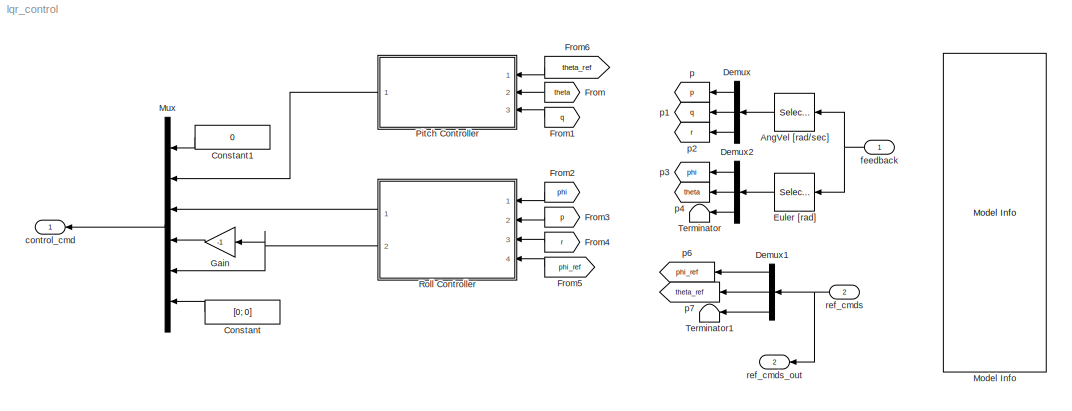
MODEL lqr_control
KIND model
BLOCK [Selector] AngVel [rad//sec]
  IndexOptions = Index vector (dialog)
  Indices = [4:6]
  InputPortWidth = 19
  OutputSizes = 1
  Ports = [1, 1]
  SID = 56
BLOCK [Constant] Constant
  SID = 85
  Value = [0; 0]
BLOCK [Constant] Constant1
  SID = 86
  Value = 0
BLOCK [Demux] Demux
  DisplayOption = bar
  Outputs = 3
  Ports = [1, 3]
  SID = 63
BLOCK [Demux] Demux1
  DisplayOption = bar
  Outputs = [1 1 10]
  Ports = [1, 3]
  SID = 91
BLOCK [Demux] Demux2
  DisplayOption = bar
  Outputs = 3
  Ports = [1, 3]
  SID = 64
BLOCK [Selector] Euler [rad]
  IndexOptions = Index vector (dialog)
  Indices = [1:3]
  InputPortWidth = 19
  OutputSizes = 1
  Ports = [1, 1]
  SID = 62
BLOCK [From] From
  GotoTag = theta
  SID = 71
BLOCK [From] From1
  GotoTag = q
  SID = 72
BLOCK [From] From2
  GotoTag = phi
  SID = 73
BLOCK [From] From3
  GotoTag = p
  SID = 74
BLOCK [From] From4
  GotoTag = r
  SID = 75
BLOCK [From] From5
  GotoTag = phi_ref
  SID = 76
BLOCK [From] From6
  GotoTag = theta_ref
  SID = 77
BLOCK [Gain] Gain
  Gain = -1
  OutDataTypeStr = Inherit: Inherit via internal rule
  ParamDataTypeStr = Inherit: Inherit via internal rule
  SID = 87
  SaturateOnIntegerOverflow = off
BLOCK [Reference] Model Info  REF=simulink/Model-Wide\nUtilities/Model Info
  BlockCM = None
  DisplayStringWithTags = Ref Cmd Port Info\n\n1. phi_cmd\n2. theta_cmd\n3. psi_cmd\n4. p_cmd\n5. q_cmd\n6. r_cmd\n7. V_s_cmd\n8. h_cmd\n9. gndtrk_cmd\n10. aoa_cmd\n11. aos_cmd\n12. gamma_cmd\n13. signal_0\n14. signal_1\n15. signal_2\n16. signal_3\n17. signal_4\n18. signal_5\n19. signal_6\n20. signal_7\n21. signal_8\n22. signal_9
  Frame = on
  HorizontalTextAlignment = Center
  InitialBlockCM = None
  LeftAlignmentValue = 0.5
  MaskDisplayString = Ref Cmd Port Info\\n\\n1. phi_cmd\\n2. theta_cmd\\n3. psi_cmd\\n4. p_cmd\\n5. q_cmd\\n6. r_cmd\\n7. V_s_cmd\\n8. h_cmd\\n9. gndtrk_cmd\\n10. aoa_cmd\\n11. aos_cmd\\n12. gamma_cmd\\n13. signal_0\\n14. signal_1\\n15. signal_2\\n16. signal_3\\n17. signal_4\\n18. signal_5\\n19. signal_6\\n20. signal_7\\n21. signal_8\\n22. signal_9
  Ports = []
  SID = 97
  SourceBlock = simulink/Model-Wide\nUtilities/Model Info
  SourceBlockDiagram = lqr_control
  SourceType = CMBlock
  TagMaxNumber = 20
BLOCK [Mux] Mux
  DisplayOption = bar
  Inputs = 6
  Ports = [6, 1]
  SID = 88
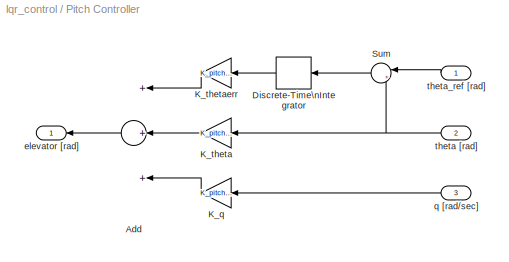
BLOCK [SubSystem] Pitch Controller
  FunctionWithSeparateData = off
  MaskHideContents = off
  MinAlgLoopOccurrences = off
  Opaque = off
  Ports = [3, 1]
  PropExecContextOutsideSubsystem = off
  RTWSystemCode = Auto
  RequestExecContextInheritance = off
  SID = 17
BLOCK [Sum] Pitch Controller/Add
  InputSameDT = off
  Inputs = +++
  OutDataTypeStr = Inherit: Inherit via internal rule
  Ports = [3, 1]
  SID = 28
  SaturateOnIntegerOverflow = off
BLOCK [DiscreteIntegrator] Pitch Controller/Discrete-Time\nIntegrator
  ICPrevOutput = DiscIntNeverNeededParam
  ICPrevScaledInput = DiscIntNeverNeededParam
  Ports = [1, 1]
  SID = 82
  SampleTime = SampleTime
BLOCK [Gain] Pitch Controller/K_q
  Gain = K_pitch(2)
  OutDataTypeStr = Inherit: Inherit via internal rule
  ParamDataTypeStr = Inherit: Inherit via internal rule
  SID = 27
  SaturateOnIntegerOverflow = off
BLOCK [Gain] Pitch Controller/K_theta
  Gain = K_pitch(3)
  OutDataTypeStr = Inherit: Inherit via internal rule
  ParamDataTypeStr = Inherit: Inherit via internal rule
  SID = 26
  SaturateOnIntegerOverflow = off
BLOCK [Gain] Pitch Controller/K_thetaerr
  Gain = K_pitch(1)
  OutDataTypeStr = Inherit: Inherit via internal rule
  ParamDataTypeStr = Inherit: Inherit via internal rule
  SID = 25
  SaturateOnIntegerOverflow = off
BLOCK [Sum] Pitch Controller/Sum
  IconShape = round
  InputSameDT = off
  Inputs = |+-
  OutDataTypeStr = Inherit: Inherit via internal rule
  Ports = [2, 1]
  SID = 24
  SaturateOnIntegerOverflow = off
BLOCK [Outport] Pitch Controller/elevator [rad]
  IconDisplay = Port number
  SID = 19
BLOCK [Inport] Pitch Controller/q [rad//sec]
  IconDisplay = Port number
  Port = 3
  SID = 20
BLOCK [Inport] Pitch Controller/theta [rad]
  IconDisplay = Port number
  Port = 2
  SID = 18
BLOCK [Inport] Pitch Controller/theta_ref [rad]
  IconDisplay = Port number
  SID = 22
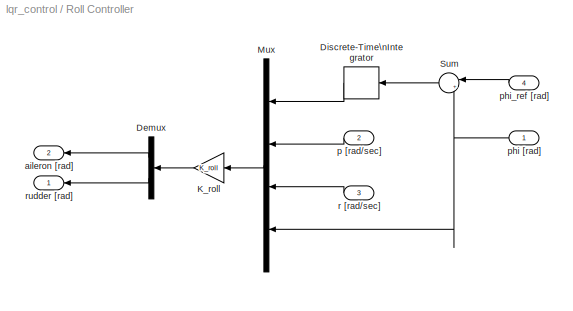
BLOCK [SubSystem] Roll Controller
  FunctionWithSeparateData = off
  MaskHideContents = off
  MinAlgLoopOccurrences = off
  Opaque = off
  Ports = [4, 2]
  PropExecContextOutsideSubsystem = off
  RTWSystemCode = Auto
  RequestExecContextInheritance = off
  SID = 29
BLOCK [Demux] Roll Controller/Demux
  DisplayOption = bar
  Outputs = 2
  Ports = [1, 2]
  SID = 44
BLOCK [DiscreteIntegrator] Roll Controller/Discrete-Time\nIntegrator
  ICPrevOutput = DiscIntNeverNeededParam
  ICPrevScaledInput = DiscIntNeverNeededParam
  Ports = [1, 1]
  SID = 83
  SampleTime = SampleTime
BLOCK [Gain] Roll Controller/K_roll
  Gain = K_roll
  Multiplication = Matrix(K*u) (u vector)
  OutDataTypeStr = Inherit: Inherit via internal rule
  ParamDataTypeStr = Inherit: Inherit via internal rule
  SID = 43
  SaturateOnIntegerOverflow = off
BLOCK [Mux] Roll Controller/Mux
  DisplayOption = bar
  Ports = [4, 1]
  SID = 42
BLOCK [Sum] Roll Controller/Sum
  IconShape = round
  InputSameDT = off
  Inputs = |+-
  OutDataTypeStr = Inherit: Inherit via internal rule
  Ports = [2, 1]
  SID = 38
  SaturateOnIntegerOverflow = off
BLOCK [Outport] Roll Controller/aileron [rad]
  IconDisplay = Port number
  Port = 2
  SID = 39
BLOCK [Inport] Roll Controller/p [rad//sec]
  IconDisplay = Port number
  Port = 2
  SID = 31
BLOCK [Inport] Roll Controller/phi [rad]
  IconDisplay = Port number
  SID = 30
BLOCK [Inport] Roll Controller/phi_ref [rad]
  IconDisplay = Port number
  Port = 4
  SID = 32
BLOCK [Inport] Roll Controller/r [rad//sec]
  IconDisplay = Port number
  Port = 3
  SID = 41
BLOCK [Outport] Roll Controller/rudder [rad]
  IconDisplay = Port number
  SID = 45
BLOCK [Terminator] Terminator
  SID = 80
BLOCK [Terminator] Terminator1
  SID = 92
BLOCK [Outport] control_cmd
  IconDisplay = Port number
  SID = 2
BLOCK [Inport] feedback
  IconDisplay = Port number
  SID = 3
BLOCK [Goto] p
  GotoTag = p
  SID = 65
BLOCK [Goto] p1
  GotoTag = q
  SID = 66
BLOCK [Goto] p2
  GotoTag = r
  SID = 67
BLOCK [Goto] p3
  GotoTag = phi
  SID = 68
BLOCK [Goto] p4
  GotoTag = theta
  SID = 69
BLOCK [Goto] p6
  GotoTag = phi_ref
  SID = 93
BLOCK [Goto] p7
  GotoTag = theta_ref
  SID = 94
BLOCK [Inport] ref_cmds
  IconDisplay = Port number
  Port = 2
  SID = 4
BLOCK [Outport] ref_cmds_out
  IconDisplay = Port number
  Port = 2
  SID = 89
LINE AngVel [rad//sec]:1 -> Demux:1
LINE Constant1:1 -> Mux:1
LINE Constant:1 -> Mux:6
LINE Demux1:1 -> p6:1
LINE Demux1:2 -> p7:1
LINE Demux1:3 -> Terminator1:1
LINE Demux2:1 -> p3:1
LINE Demux2:2 -> p4:1
LINE Demux2:3 -> Terminator:1
LINE Demux:1 -> p:1
LINE Demux:2 -> p1:1
LINE Demux:3 -> p2:1
LINE Euler [rad]:1 -> Demux2:1
LINE From1:1 -> Pitch Controller:3
LINE From2:1 -> Roll Controller:1
LINE From3:1 -> Roll Controller:2
LINE From4:1 -> Roll Controller:3
LINE From5:1 -> Roll Controller:4
LINE From6:1 -> Pitch Controller:1
LINE From:1 -> Pitch Controller:2
LINE Gain:1 -> Mux:4
LINE Mux:1 -> control_cmd:1
LINE Pitch Controller/Add:1 -> Pitch Controller/elevator [rad]:1
LINE Pitch Controller/Discrete-Time\nIntegrator:1 -> Pitch Controller/K_thetaerr:1
LINE Pitch Controller/K_q:1 -> Pitch Controller/Add:3
LINE Pitch Controller/K_theta:1 -> Pitch Controller/Add:2
LINE Pitch Controller/K_thetaerr:1 -> Pitch Controller/Add:1
LINE Pitch Controller/Sum:1 -> Pitch Controller/Discrete-Time\nIntegrator:1
LINE Pitch Controller/q [rad//sec]:1 -> Pitch Controller/K_q:1
NET Pitch Controller/theta [rad]:1 -> Pitch Controller/K_theta:1, Pitch Controller/Sum:2
LINE Pitch Controller/theta_ref [rad]:1 -> Pitch Controller/Sum:1
LINE Pitch Controller:1 -> Mux:2
LINE Roll Controller/Demux:1 -> Roll Controller/aileron [rad]:1
LINE Roll Controller/Demux:2 -> Roll Controller/rudder [rad]:1
LINE Roll Controller/Discrete-Time\nIntegrator:1 -> Roll Controller/Mux:1
LINE Roll Controller/K_roll:1 -> Roll Controller/Demux:1
LINE Roll Controller/Mux:1 -> Roll Controller/K_roll:1
LINE Roll Controller/Sum:1 -> Roll Controller/Discrete-Time\nIntegrator:1
LINE Roll Controller/p [rad//sec]:1 -> Roll Controller/Mux:2
NET Roll Controller/phi [rad]:1 -> Roll Controller/Mux:4, Roll Controller/Sum:2
LINE Roll Controller/phi_ref [rad]:1 -> Roll Controller/Sum:1
LINE Roll Controller/r [rad//sec]:1 -> Roll Controller/Mux:3
LINE Roll Controller:1 -> Mux:3
NET Roll Controller:2 -> Gain:1, Mux:5
NET feedback:1 -> AngVel [rad//sec]:1, Euler [rad]:1
NET ref_cmds:1 -> Demux1:1, ref_cmds_out:1
note: NET lines group one-source signal fan-out (src -> all destinations, sorted); 1:1 wires keep LINE
